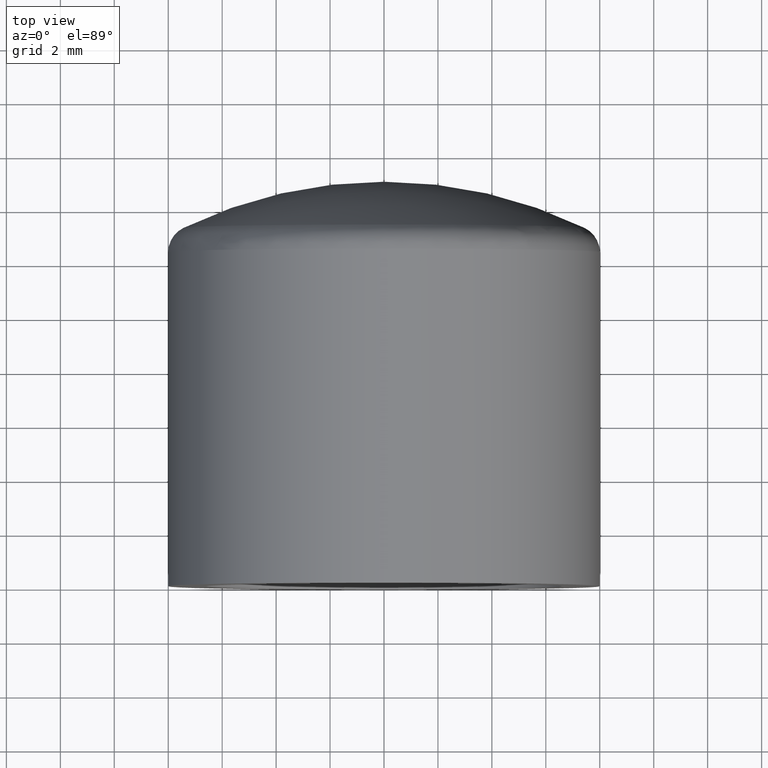
[diagram: clean part render]
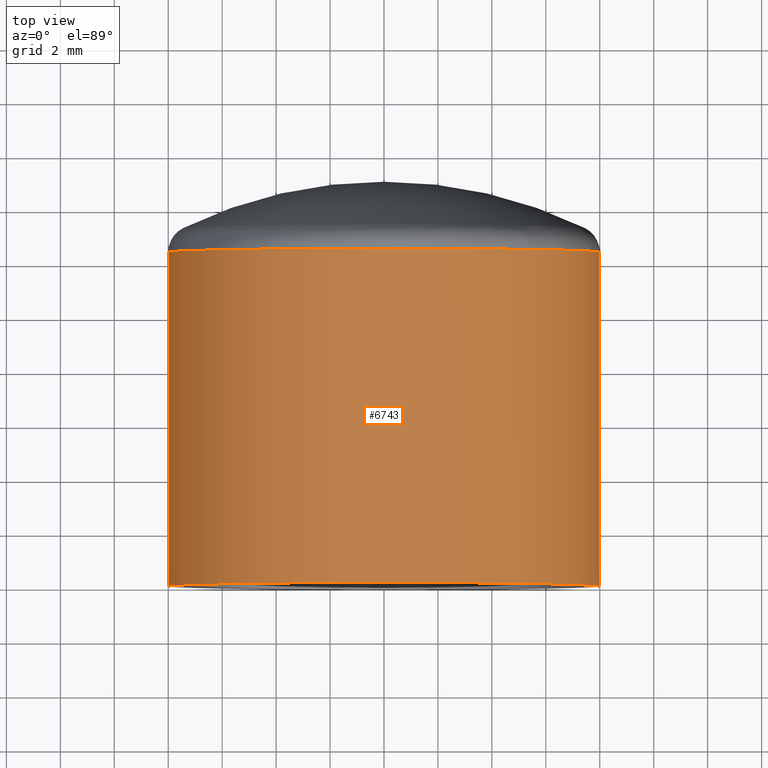
[diagram: same view with one face highlighted and labeled with its STEP entity id]
A machine part, top view. The second image highlights one B-rep face of the part: STEP entity #6743.
In plain terms, the highlighted cylindrical surface (partial cylindrical patch) has radius 8 mm, axis along (0, -1, -0).
Its self-contained STEP definition (entity closure, byte-faithful):
#406 = CARTESIAN_POINT ( 'NONE',  ( 7.408651296675851309E-18, 11.63449007382982181, 0.000000000000000000 ) ) ;
#459 = DIRECTION ( 'NONE',  ( 1.000000000000000000, 0.000000000000000000, 0.000000000000000000 ) ) ;
#471 = VERTEX_POINT ( 'NONE', #3380 ) ;
#1618 = DIRECTION ( 'NONE',  ( 2.201345846305856848E-18, -1.000000000000000000, -0.000000000000000000 ) ) ;
#1735 = CARTESIAN_POINT ( 'NONE',  ( -8.000000000000000000, -1.761076677044685479E-17, 9.797174393178825657E-16 ) ) ;
#2522 = CARTESIAN_POINT ( 'NONE',  ( -8.000000000000000000, 11.63449007382982181, 9.797174393178825657E-16 ) ) ;
#2648 = VECTOR ( 'NONE', #8198, 1000.000000000000000 ) ;
#2991 = ORIENTED_EDGE ( 'NONE', *, *, #4333, .F. ) ;
#3228 = CARTESIAN_POINT ( 'NONE',  ( 3.302018769458785273E-17, 0.000000000000000000, 0.000000000000000000 ) ) ;
#3380 = CARTESIAN_POINT ( 'NONE',  ( 8.000000000000000000, 12.38749456993815556, 0.000000000000000000 ) ) ;
#4333 = EDGE_CURVE ( 'NONE', #12646, #4561, #12053, .T. ) ;
#4424 = CIRCLE ( 'NONE', #12078, 8.000000000000000000 ) ;
#4561 = VERTEX_POINT ( 'NONE', #1735 ) ;
#4734 = AXIS2_PLACEMENT_3D ( 'NONE', #406, #1618, #459 ) ;
#5024 = CARTESIAN_POINT ( 'NONE',  ( -8.000000000000000000, 12.38749456993815556, 9.797174393178825657E-16 ) ) ;
#6533 = FACE_OUTER_BOUND ( 'NONE', #9048, .T. ) ;
#6743 = ADVANCED_FACE ( 'NONE', ( #6533 ), #11744, .T. ) ;
#7150 = ORIENTED_EDGE ( 'NONE', *, *, #13973, .T. ) ;
#8024 = EDGE_CURVE ( 'NONE', #471, #12646, #12929, .T. ) ;
#8198 = DIRECTION ( 'NONE',  ( 2.201345846305856848E-18, -1.000000000000000000, -0.000000000000000000 ) ) ;
#8359 = CARTESIAN_POINT ( 'NONE',  ( 8.000000000000000000, 1.761076677044685479E-17, 0.000000000000000000 ) ) ;
#8422 = EDGE_CURVE ( 'NONE', #471, #12673, #4424, .T. ) ;
#8465 = CARTESIAN_POINT ( 'NONE',  ( 8.000000000000000000, 11.63449007382982181, 0.000000000000000000 ) ) ;
#8952 = VECTOR ( 'NONE', #13070, 1000.000000000000000 ) ;
#9048 = EDGE_LOOP ( 'NONE', ( #11947, #7150, #2991, #10883 ) ) ;
#9578 = AXIS2_PLACEMENT_3D ( 'NONE', #3228, #14274, #14221 ) ;
#10658 = DIRECTION ( 'NONE',  ( 2.201345846305857234E-18, -1.000000000000000000, -0.000000000000000000 ) ) ;
#10883 = ORIENTED_EDGE ( 'NONE', *, *, #8024, .F. ) ;
#11744 = CYLINDRICAL_SURFACE ( 'NONE', #4734, 8.000000000000000000 ) ;
#11947 = ORIENTED_EDGE ( 'NONE', *, *, #8422, .T. ) ;
#12053 = CIRCLE ( 'NONE', #9578, 8.000000000000000000 ) ;
#12078 = AXIS2_PLACEMENT_3D ( 'NONE', #13776, #10658, #13918 ) ;
#12646 = VERTEX_POINT ( 'NONE', #8359 ) ;
#12673 = VERTEX_POINT ( 'NONE', #5024 ) ;
#12929 = LINE ( 'NONE', #8465, #8952 ) ;
#13070 = DIRECTION ( 'NONE',  ( 2.201345846305856848E-18, -1.000000000000000000, -0.000000000000000000 ) ) ;
#13547 = LINE ( 'NONE', #2522, #2648 ) ;
#13776 = CARTESIAN_POINT ( 'NONE',  ( 5.751027976918133163E-18, 12.38749456993815556, 0.000000000000000000 ) ) ;
#13918 = DIRECTION ( 'NONE',  ( 1.000000000000000000, 0.000000000000000000, 0.000000000000000000 ) ) ;
#13973 = EDGE_CURVE ( 'NONE', #12673, #4561, #13547, .T. ) ;
#14221 = DIRECTION ( 'NONE',  ( 1.000000000000000000, 2.201345846305856848E-18, 0.000000000000000000 ) ) ;
#14274 = DIRECTION ( 'NONE',  ( 2.201345846305856848E-18, -1.000000000000000000, -0.000000000000000000 ) ) ;